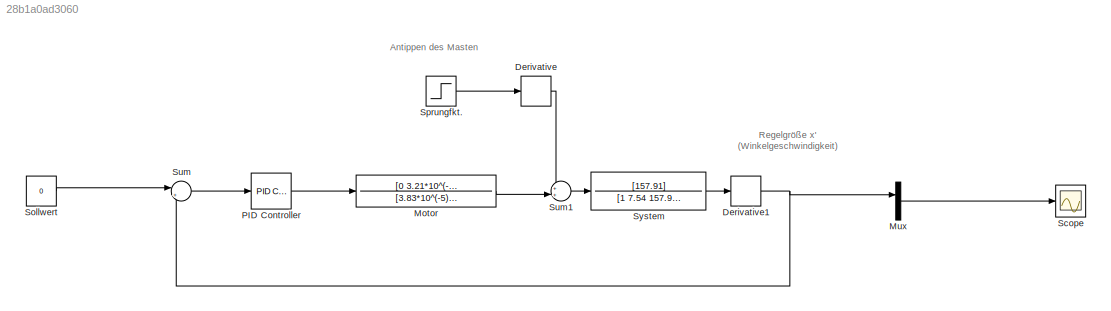
MODEL slx_28b1a0ad3060
KIND model
CONFIG AbsTol = auto
CONFIG FixedStep = auto
CONFIG MaxStep = 0.01
CONFIG MinStep = auto
CONFIG RelTol = 1e-3
CONFIG SampleTimeConstraint = Unconstrained
CONFIG Solver = VariableStepAuto
CONFIG SolverMode = Auto
CONFIG SolverName = VariableStepAuto
CONFIG StartTime = 0.0
CONFIG StopTime = 5
BLOCK [Derivative] Derivative
BLOCK [Derivative] Derivative1
BLOCK [TransferFcn] Motor
  Denominator = [3.83*10^(-5) 0.029 1]
  Numerator = [0 3.21*10^(-3) 0]
BLOCK [Mux] Mux
  DisplayOption = bar
  Inputs = 2
  Ports = [2, 1]
BLOCK [Reference] PID Controller  REF=simulink/Continuous/PID Controller
  Ports = [1, 1]
  SourceBlock = simulink/Continuous/PID Controller
  SourceType = PID 1dof
BLOCK [Scope] Scope
  Ports = [1]
  ScopeSpecificationString = Simulink.scopes.TimeScopeBlockCfg('CurrentConfiguration', extmgr.ConfigurationSet(extmgr.Configuration('Core','General UI',true),extmgr.Configuration('Core','Source UI',true),extmgr.Configuration('Sources','WiredSimulink',true),extmgr.Configuration('Visuals','Time Domain',true,'SerializedDisplays',{struct('MinYLimReal','-39.1754','MaxYLimReal','19.41106','YLabelReal','','MinYLimMag','0.00000','Max...<+1420ch>
BLOCK [Constant] Sollwert
  Value = 0
BLOCK [Step] Sprungfkt.
  After = -5
  SampleTime = 0
BLOCK [Sum] Sum
  IconShape = round
  InputSameDT = off
  Inputs = |++
  OutDataTypeStr = Inherit: Inherit via internal rule
  Ports = [2, 1]
  SaturateOnIntegerOverflow = off
BLOCK [Sum] Sum1
  IconShape = round
  InputSameDT = off
  Inputs = ++|
  OutDataTypeStr = Inherit: Inherit via internal rule
  Ports = [2, 1]
  SaturateOnIntegerOverflow = off
BLOCK [TransferFcn] System
  Denominator = [1 7.54 157.91]
  Numerator = [157.91]
ANNOTATION (root): Antippen des Masten
ANNOTATION (root): Regelgröße x' (Winkelgeschwindigkeit)
NET Derivative1:1 -> Mux:1, Sum:2
LINE Derivative:1 -> Sum1:1
LINE Motor:1 -> Sum1:2
LINE Mux:1 -> Scope:1
LINE PID Controller:1 -> Motor:1
LINE Sollwert:1 -> Sum:1
LINE Sprungfkt.:1 -> Derivative:1
LINE Sum1:1 -> System:1
LINE Sum:1 -> PID Controller:1
LINE System:1 -> Derivative1:1
note: NET lines group one-source signal fan-out (src -> all destinations, sorted); 1:1 wires keep LINE
